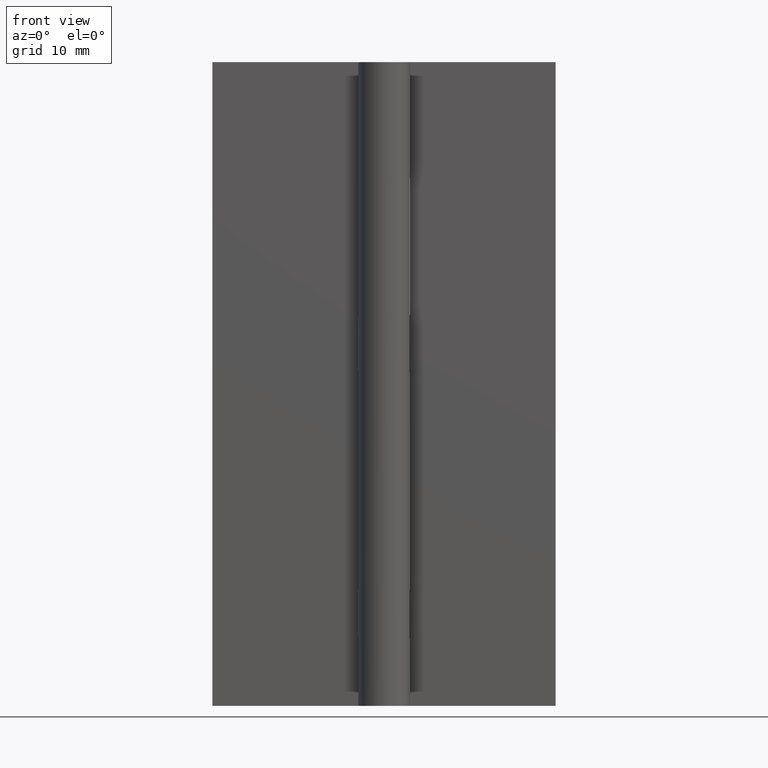
[diagram: clean part render]
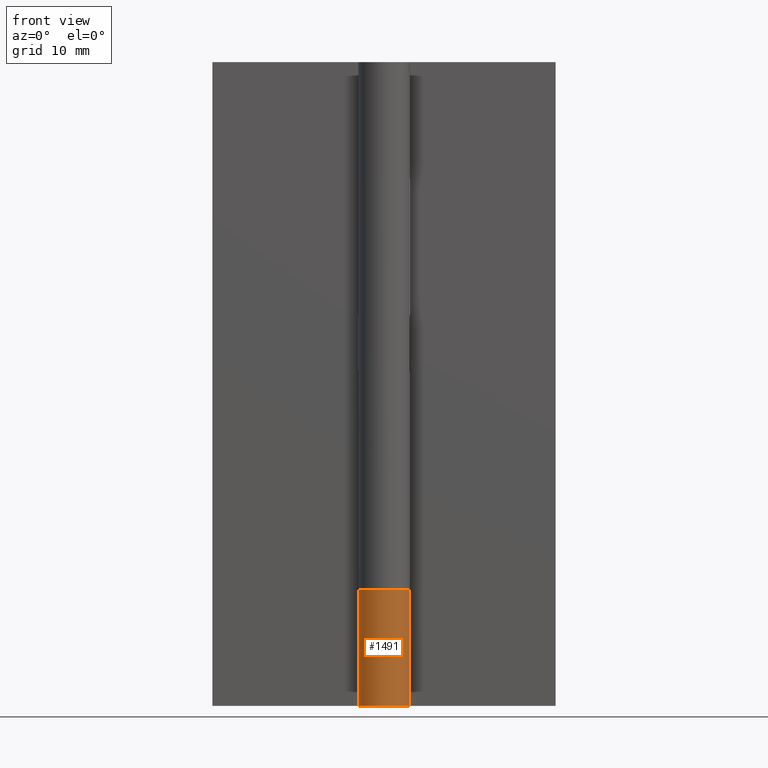
[diagram: same view with one face highlighted and labeled with its STEP entity id]
A machine part, front view. The second image highlights one B-rep face of the part: STEP entity #1491.
In plain terms, the highlighted face is a freeform B-spline surface patch.
Its self-contained STEP definition (entity closure, byte-faithful):
#770=CARTESIAN_POINT('',(0.0,3.0,13.500000000000201));
#771=VERTEX_POINT('',#770);
#772=CARTESIAN_POINT('',(2.279802623035600,1.950000000000000,13.500000000000179));
#773=VERTEX_POINT('',#772);
#774=CARTESIAN_POINT('',(0.0,3.0,13.500000000000179));
#775=CARTESIAN_POINT('',(-2.413588206575670,3.000000000000001,13.500000000000178));
#776=CARTESIAN_POINT('',(-2.930414301431048,0.642395533895115,13.500000000000179));
#777=CARTESIAN_POINT('',(-3.447240396286425,-1.715208932209774,13.500000000000178));
#778=CARTESIAN_POINT('',(-1.254990039801115,-2.724885318687742,13.500000000000179));
#779=CARTESIAN_POINT('',(0.937260316684195,-3.734561705165711,13.500000000000178));
#780=CARTESIAN_POINT('',(2.392947636996991,-1.809364973296023,13.500000000000179));
#781=CARTESIAN_POINT('',(3.848634957309785,0.115831758573663,13.500000000000178));
#782=CARTESIAN_POINT('',(2.279802623035601,1.949999999999998,13.500000000000179));
#790=(BOUNDED_CURVE()B_SPLINE_CURVE(2,(#774,#775,#776,#777,#778,#779,#780,#781,#782),.UNSPECIFIED.,.F.,.U.)B_SPLINE_CURVE_WITH_KNOTS((3,2,2,2,3),(0.0,0.250000000000000,0.500000000000000,0.750000000000000,1.0),.UNSPECIFIED.)CURVE()GEOMETRIC_REPRESENTATION_ITEM()RATIONAL_B_SPLINE_CURVE((1.0,0.779144352681743,1.0,0.779144352681743,1.0,0.779144352681743,1.0,0.779144352681743,1.0))REPRESENTATION_ITEM(''));
#791=EDGE_CURVE('',#771,#773,#790,.T.);
#1145=CARTESIAN_POINT('',(2.279802623035600,1.950000000000000,0.0));
#1146=VERTEX_POINT('',#1145);
#1152=CARTESIAN_POINT('',(0.0,3.0,0.0));
#1153=VERTEX_POINT('',#1152);
#1154=CARTESIAN_POINT('',(2.279802623035600,1.950000000000000,0.0));
#1155=CARTESIAN_POINT('',(3.848634957309785,0.115831758573665,0.0));
#1156=CARTESIAN_POINT('',(2.392947636996992,-1.809364973296021,0.0));
#1157=CARTESIAN_POINT('',(0.937260316684198,-3.734561705165708,0.0));
#1158=CARTESIAN_POINT('',(-1.254990039801111,-2.724885318687744,0.0));
#1159=CARTESIAN_POINT('',(-3.447240396286424,-1.715208932209778,0.0));
#1160=CARTESIAN_POINT('',(-2.930414301431048,0.642395533895113,0.0));
#1161=CARTESIAN_POINT('',(-2.413588206575672,3.0,0.0));
#1162=CARTESIAN_POINT('',(0.0,3.0,0.0));
#1170=(BOUNDED_CURVE()B_SPLINE_CURVE(2,(#1154,#1155,#1156,#1157,#1158,#1159,#1160,#1161,#1162),.UNSPECIFIED.,.F.,.U.)B_SPLINE_CURVE_WITH_KNOTS((3,2,2,2,3),(0.0,0.250000000000000,0.500000000000000,0.750000000000000,1.0),.UNSPECIFIED.)CURVE()GEOMETRIC_REPRESENTATION_ITEM()RATIONAL_B_SPLINE_CURVE((1.0,0.779144352681743,1.0,0.779144352681743,1.0,0.779144352681743,1.0,0.779144352681743,1.0))REPRESENTATION_ITEM(''));
#1171=EDGE_CURVE('',#1146,#1153,#1170,.T.);
#1349=CARTESIAN_POINT('',(0.0,3.0,13.500000000000201));
#1350=CARTESIAN_POINT('',(0.0,3.0,0.0));
#1351=QUASI_UNIFORM_CURVE('',1,(#1349,#1350),.UNSPECIFIED.,.F.,.U.);
#1352=EDGE_CURVE('',#771,#1153,#1351,.T.);
#1450=CARTESIAN_POINT('',(2.279802623035600,1.950000000000000,13.500000000000179));
#1451=CARTESIAN_POINT('',(2.279802623035600,1.950000000000000,0.0));
#1452=QUASI_UNIFORM_CURVE('',1,(#1450,#1451),.UNSPECIFIED.,.F.,.U.);
#1453=EDGE_CURVE('',#773,#1146,#1452,.T.);
#1459=CARTESIAN_POINT('',(0.102521520639606,2.998247711214959,13.837500000000210));
#1460=CARTESIAN_POINT('',(0.102521520639606,2.998247711214959,-0.345937500000005));
#1461=CARTESIAN_POINT('',(-2.380049052706159,3.083136264393045,13.837500000000203));
#1462=CARTESIAN_POINT('',(-2.380049052706159,3.083136264393045,-0.345937500000005));
#1463=CARTESIAN_POINT('',(-2.926506928555284,0.659967572777570,13.837500000000210));
#1464=CARTESIAN_POINT('',(-2.926506928555284,0.659967572777570,-0.345937500000005));
#1465=CARTESIAN_POINT('',(-3.472964804404408,-1.763201118837906,13.837500000000203));
#1466=CARTESIAN_POINT('',(-3.472964804404408,-1.763201118837906,-0.345937500000005));
#1467=CARTESIAN_POINT('',(-1.194249288082919,-2.752048080596238,13.837500000000210));
#1468=CARTESIAN_POINT('',(-1.194249288082919,-2.752048080596238,-0.345937500000005));
#1469=CARTESIAN_POINT('',(1.084466228238569,-3.740895042354571,13.837500000000203));
#1470=CARTESIAN_POINT('',(1.084466228238569,-3.740895042354571,-0.345937500000005));
#1471=CARTESIAN_POINT('',(2.480994534127716,-1.686613803343373,13.837500000000210));
#1472=CARTESIAN_POINT('',(2.480994534127716,-1.686613803343373,-0.345937500000005));
#1473=CARTESIAN_POINT('',(3.877522840016862,0.367667435667825,13.837500000000203));
#1474=CARTESIAN_POINT('',(3.877522840016862,0.367667435667825,-0.345937500000005));
#1475=CARTESIAN_POINT('',(2.119779515725142,2.122860053020942,13.837500000000210));
#1476=CARTESIAN_POINT('',(2.119779515725142,2.122860053020942,-0.345937500000005));
#1484=(BOUNDED_SURFACE()B_SPLINE_SURFACE(1,2,((#1459,#1461,#1463,#1465,#1467,#1469,#1471,#1473,#1475),(#1460,#1462,#1464,#1466,#1468,#1470,#1472,#1474,#1476)),.UNSPECIFIED.,.F.,.F.,.U.)B_SPLINE_SURFACE_WITH_KNOTS((2,2),(3,2,2,2,3),(0.0,14.183437500000210),(0.0,4.323223397139982,8.646446794279964,12.969670191419951,17.292893588559931),.UNSPECIFIED.)GEOMETRIC_REPRESENTATION_ITEM()RATIONAL_B_SPLINE_SURFACE(((1.0,0.770235040753384,1.0,0.770235040753384,1.0,0.770235040753384,1.0,0.770235040753384,1.0),(1.0,0.770235040753384,1.0,0.770235040753384,1.0,0.770235040753384,1.0,0.770235040753384,1.0)))REPRESENTATION_ITEM('')SURFACE());
#1485=ORIENTED_EDGE('',*,*,#1453,.F.);
#1486=ORIENTED_EDGE('',*,*,#791,.F.);
#1487=ORIENTED_EDGE('',*,*,#1352,.T.);
#1488=ORIENTED_EDGE('',*,*,#1171,.F.);
#1489=EDGE_LOOP('',(#1485,#1486,#1487,#1488));
#1490=FACE_OUTER_BOUND('',#1489,.T.);
#1491=ADVANCED_FACE('',(#1490),#1484,.T.);